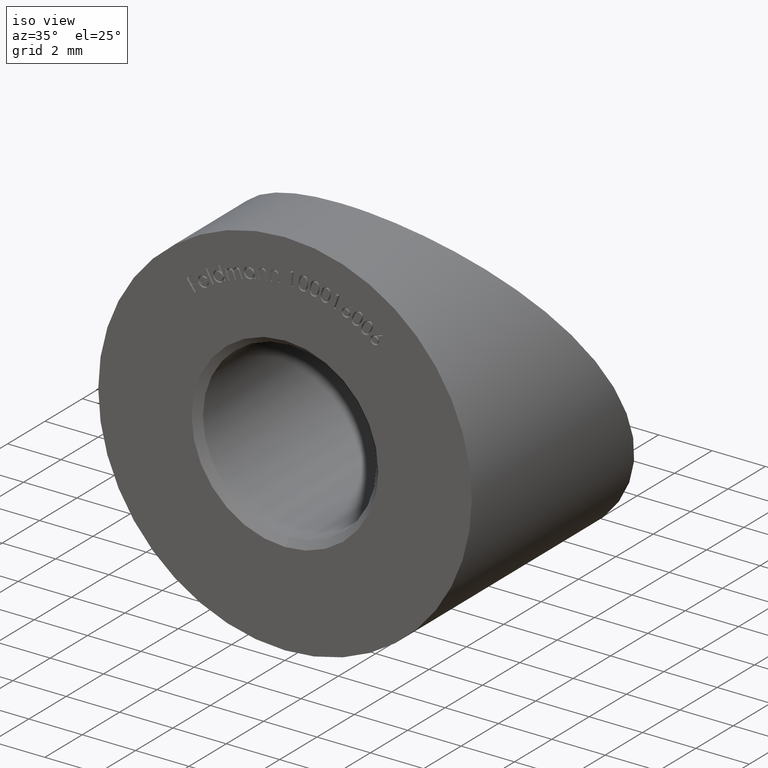
[diagram: clean part render]
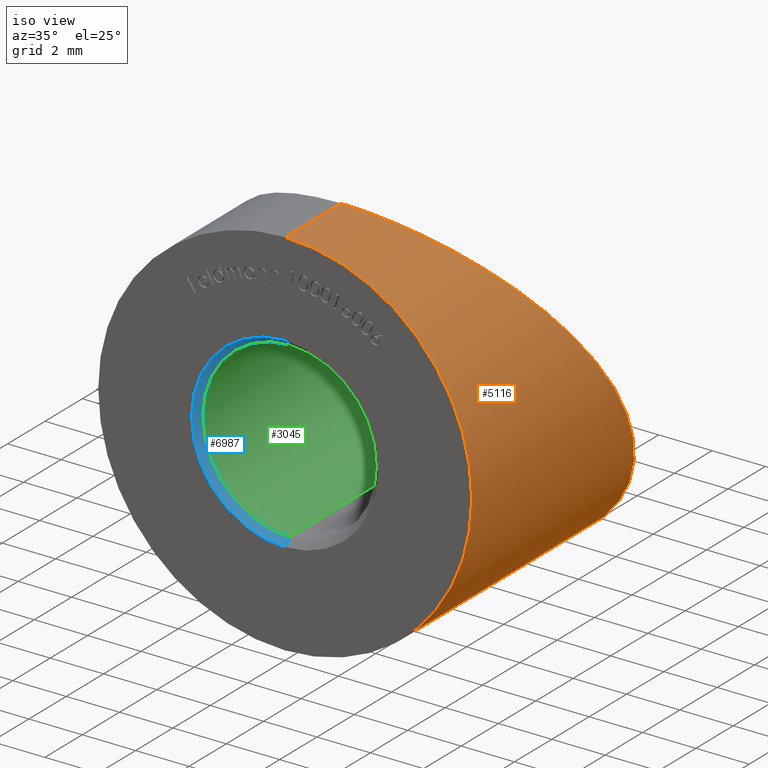
[diagram: same view with three faces highlighted in distinct colors, each labeled with its STEP entity id]
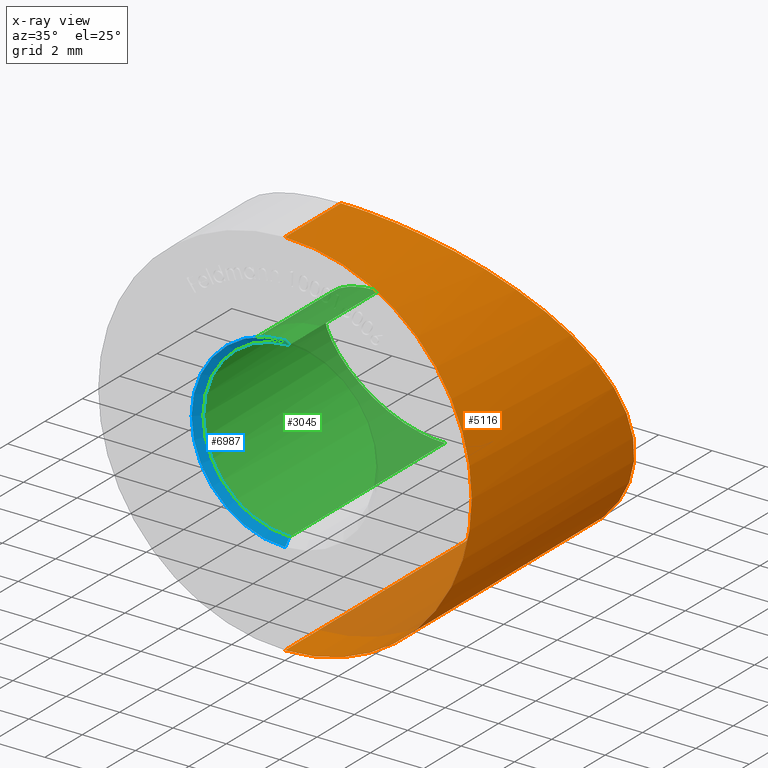
[diagram: x-ray of the same camera — body ghosted, the three highlighted faces saturated]
A machine part, iso view with three faces highlighted in distinct colors.
The next image is the same camera in x-ray (body ghosted, the three faces saturated) — at least one of them is partly hidden behind the body in this view.
Their STEP definitions:

[orange] entity #5116 — the highlighted cylindrical surface (partial cylindrical patch) has radius 7 mm, axis along (-0, -1, -0).
#2 = EDGE_CURVE ( 'NONE', #9500, #5680, #3328, .T. ) ;
#472 = B_SPLINE_CURVE_WITH_KNOTS ( 'NONE', 3,
 ( #5123, #10411, #6013, #7213, #11307, #9237, #2918, #7031, #11352, #9194, #3929, #6065, #10322, #1927, #5002, #12504, #13441, #2831, #749, #13480, #7122, #10238, #833, #6150, #11433, #4067, #13564, #9319, #8198, #12459, #9277, #3972, #5973, #13523, #7167, #9371, #11487, #3883, #5038, #11393, #12379, #13397, #916, #878, #8244, #5081 ),
 .UNSPECIFIED., .F., .F.,
 ( 4, 2, 2, 2, 2, 2, 2, 2, 2, 2, 2, 2, 2, 2, 2, 2, 2, 2, 2, 2, 2, 2, 4 ),
 ( 0.0000000000000000000, 0.001474315538317101100, 0.002948631076634202200, 0.004422946614951303100, 0.005160104384109852900, 0.005897262153268402600, 0.006634419922426952400, 0.007371577691585501400, 0.008845893229902600900, 0.009583050999061152500, 0.01032020876821970600, 0.01179452430653681000, 0.01326883984485391700, 0.01400599761401247000, 0.01474315538317102400, 0.01621747092148812700, 0.01695462869064667800, 0.01769178645980523300, 0.01916610199812234000, 0.02064041753643944600, 0.02137757530559799800, 0.02211473307475655300, 0.02358904861307365900 ),
 .UNSPECIFIED. ) ;
#749 = CARTESIAN_POINT ( 'NONE',  ( 6.770594678604483700, 9.036062907101127800, -1.791723785767992400 ) ) ;
#833 = CARTESIAN_POINT ( 'NONE',  ( 7.013235880452178600, 8.176464968063660500, -0.03361544823270118400 ) ) ;
#878 = CARTESIAN_POINT ( 'NONE',  ( 0.9794534915576735800, 3.046920426225056200, 6.948377241447683000 ) ) ;
#916 = CARTESIAN_POINT ( 'NONE',  ( 1.697100583355313200, 3.186181835987563500, 6.795562409975588000 ) ) ;
#1209 = DIRECTION ( 'NONE',  ( 0.0000000000000000000, 1.000000000000000000, 0.0000000000000000000 ) ) ;
#1500 = CARTESIAN_POINT ( 'NONE',  ( 0.0000000000000000000, 0.0000000000000000000, -7.000000000000000000 ) ) ;
#1927 = CARTESIAN_POINT ( 'NONE',  ( 5.811608423324605300, 9.846113192962537400, -3.909324757547954400 ) ) ;
#2017 = DIRECTION ( 'NONE',  ( -0.0000000000000000000, -1.000000000000000000, -0.0000000000000000000 ) ) ;
#2197 = DIRECTION ( 'NONE',  ( 0.0000000000000000000, 0.0000000000000000000, 1.000000000000000000 ) ) ;
#2601 = FACE_OUTER_BOUND ( 'NONE', #12635, .T. ) ;
#2831 = CARTESIAN_POINT ( 'NONE',  ( 6.708054917636709500, 9.132632332158838300, -2.013688080258984000 ) ) ;
#2918 = CARTESIAN_POINT ( 'NONE',  ( 3.744271798746342700, 10.39711558962667200, -5.934816483502738800 ) ) ;
#2977 = ORIENTED_EDGE ( 'NONE', *, *, #2, .F. ) ;
#3328 = LINE ( 'NONE', #8105, #8650 ) ;
#3334 = CARTESIAN_POINT ( 'NONE',  ( 0.0000000000000000000, 0.0000000000000000000, 0.0000000000000000000 ) ) ;
#3624 = CARTESIAN_POINT ( 'NONE',  ( 8.572527595924596400E-016, 2.999310102530931200, 7.000000000000000000 ) ) ;
#3883 = CARTESIAN_POINT ( 'NONE',  ( 3.641900299066556100, 3.900251462224082500, 5.994325983543516800 ) ) ;
#3927 = EDGE_CURVE ( 'NONE', #3961, #8093, #4431, .T. ) ;
#3929 = CARTESIAN_POINT ( 'NONE',  ( 5.059322672565411200, 10.12615027093803900, -4.843660395887956000 ) ) ;
#3961 = VERTEX_POINT ( 'NONE', #3624 ) ;
#3972 = CARTESIAN_POINT ( 'NONE',  ( 5.680076777937173900, 5.457446693119622200, 4.096321406783468800 ) ) ;
#4003 = EDGE_CURVE ( 'NONE', #9500, #3961, #472, .T. ) ;
#4067 = CARTESIAN_POINT ( 'NONE',  ( 6.752291559585696500, 7.047678365223997200, 1.857524813851149100 ) ) ;
#4110 = CARTESIAN_POINT ( 'NONE',  ( 0.0000000000000000000, 10.60068989746907400, -7.000000000000000000 ) ) ;
#4431 = LINE ( 'NONE', #6618, #10891 ) ;
#4585 = CARTESIAN_POINT ( 'NONE',  ( 8.572527594031473200E-016, 0.0000000000000000000, 7.000000000000000000 ) ) ;
#4970 = ORIENTED_EDGE ( 'NONE', *, *, #4003, .T. ) ;
#5002 = CARTESIAN_POINT ( 'NONE',  ( 5.942639922790501600, 9.779389482918681200, -3.706891497662024200 ) ) ;
#5038 = CARTESIAN_POINT ( 'NONE',  ( 3.240819950511467900, 3.700278639392859500, 6.221970975363006100 ) ) ;
#5081 = CARTESIAN_POINT ( 'NONE',  ( 8.572527595924596400E-016, 2.999310102530931200, 7.000000000000000000 ) ) ;
#5082 = CARTESIAN_POINT ( 'NONE',  ( 0.0000000000000000000, 15.00000000000000000, 0.0000000000000000000 ) ) ;
#5116 = ADVANCED_FACE ( 'NONE', ( #2601 ), #12372, .T. ) ;
#5123 = CARTESIAN_POINT ( 'NONE',  ( 0.0000000000000000000, 10.60068989746907400, -7.000000000000000000 ) ) ;
#5680 = VERTEX_POINT ( 'NONE', #1500 ) ;
#5973 = CARTESIAN_POINT ( 'NONE',  ( 5.555484026391921400, 5.327367022880828500, 4.263918444414103200 ) ) ;
#6013 = CARTESIAN_POINT ( 'NONE',  ( 0.9878984886414214900, 10.59207546340010900, -6.947356308751158100 ) ) ;
#6065 = CARTESIAN_POINT ( 'NONE',  ( 5.379700233170018100, 10.02410318004033800, -4.485155218836728100 ) ) ;
#6150 = CARTESIAN_POINT ( 'NONE',  ( 6.964154476261475300, 7.688628393688798500, 0.8289511107351261700 ) ) ;
#6618 = CARTESIAN_POINT ( 'NONE',  ( 8.572527594031473200E-016, 15.00000000000000000, 7.000000000000000000 ) ) ;
#6629 = AXIS2_PLACEMENT_3D ( 'NONE', #3334, #1209, #2197 ) ;
#7031 = CARTESIAN_POINT ( 'NONE',  ( 4.338768487154998100, 10.29503089189734800, -5.498680979453775200 ) ) ;
#7063 = DIRECTION ( 'NONE',  ( -0.0000000000000000000, -1.000000000000000000, -0.0000000000000000000 ) ) ;
#7122 = CARTESIAN_POINT ( 'NONE',  ( 6.911638796294967700, 8.731868048729293000, -1.130587376461380500 ) ) ;
#7167 = CARTESIAN_POINT ( 'NONE',  ( 5.146303505610000600, 4.941918162679060700, 4.749889233369812800 ) ) ;
#7213 = CARTESIAN_POINT ( 'NONE',  ( 1.949281730393933600, 10.55603420736774600, -6.741068449449014300 ) ) ;
#8093 = VERTEX_POINT ( 'NONE', #4585 ) ;
#8105 = CARTESIAN_POINT ( 'NONE',  ( 0.0000000000000000000, 15.00000000000000000, -7.000000000000000000 ) ) ;
#8198 = CARTESIAN_POINT ( 'NONE',  ( 6.482603309485393000, 6.516780166157502700, 2.649348458176600500 ) ) ;
#8244 = CARTESIAN_POINT ( 'NONE',  ( 0.4935877489881745400, 2.999310102530933400, 7.000000000000001800 ) ) ;
#8650 = VECTOR ( 'NONE', #7063, 1000.000000000000000 ) ;
#8806 = EDGE_CURVE ( 'NONE', #8093, #5680, #11332, .T. ) ;
#8827 = DIRECTION ( 'NONE',  ( -0.0000000000000000000, -1.000000000000000000, -0.0000000000000000000 ) ) ;
#9097 = ORIENTED_EDGE ( 'NONE', *, *, #3927, .T. ) ;
#9194 = CARTESIAN_POINT ( 'NONE',  ( 4.889422322986293400, 10.17246132928159400, -5.015240228211454500 ) ) ;
#9237 = CARTESIAN_POINT ( 'NONE',  ( 3.321925011872370900, 10.44850770307659400, -6.181105687898035100 ) ) ;
#9245 = ORIENTED_EDGE ( 'NONE', *, *, #8806, .T. ) ;
#9277 = CARTESIAN_POINT ( 'NONE',  ( 6.029328546474610000, 5.850501963597210400, 3.580458401154923600 ) ) ;
#9319 = CARTESIAN_POINT ( 'NONE',  ( 6.559113213218739500, 6.651109167932048600, 2.453922648573575700 ) ) ;
#9371 = CARTESIAN_POINT ( 'NONE',  ( 4.696199112599249900, 4.568668223860346000, 5.208575995352950900 ) ) ;
#9500 = VERTEX_POINT ( 'NONE', #4110 ) ;
#10238 = CARTESIAN_POINT ( 'NONE',  ( 6.998060108509077900, 8.408519869428840100, -0.4723022154808646500 ) ) ;
#10322 = CARTESIAN_POINT ( 'NONE',  ( 5.530176011040410300, 9.968368302969311800, -4.298228217876298300 ) ) ;
#10411 = CARTESIAN_POINT ( 'NONE',  ( 0.4984802011976530700, 10.60068989746907400, -7.000000000000000000 ) ) ;
#10891 = VECTOR ( 'NONE', #8827, 1000.000000000000000 ) ;
#11307 = CARTESIAN_POINT ( 'NONE',  ( 2.426193286419977600, 10.52803424600410200, -6.584439189968974500 ) ) ;
#11332 = CIRCLE ( 'NONE', #6629, 7.000000000000000000 ) ;
#11352 = CARTESIAN_POINT ( 'NONE',  ( 4.529756806721169800, 10.25680390016441900, -5.342320513704732900 ) ) ;
#11393 = CARTESIAN_POINT ( 'NONE',  ( 2.602799287885538200, 3.450815443957643100, 6.502260765261245200 ) ) ;
#11433 = CARTESIAN_POINT ( 'NONE',  ( 6.900718366892465200, 7.436283536692041500, 1.247174799189336900 ) ) ;
#11487 = CARTESIAN_POINT ( 'NONE',  ( 4.366997946417799700, 4.333545501756357300, 5.488598247395118300 ) ) ;
#12372 = CYLINDRICAL_SURFACE ( 'NONE', #12857, 7.000000000000000000 ) ;
#12379 = CARTESIAN_POINT ( 'NONE',  ( 2.383703828126547900, 3.375712945707666000, 6.585927241897988600 ) ) ;
#12459 = CARTESIAN_POINT ( 'NONE',  ( 6.229706812565763300, 6.116254021652715700, 3.219242878915241000 ) ) ;
#12504 = CARTESIAN_POINT ( 'NONE',  ( 6.297847899912675900, 9.566182660432645000, -3.092113700867962700 ) ) ;
#12635 = EDGE_LOOP ( 'NONE', ( #4970, #9097, #9245, #2977 ) ) ;
#12857 = AXIS2_PLACEMENT_3D ( 'NONE', #5082, #2017, #13566 ) ;
#13397 = CARTESIAN_POINT ( 'NONE',  ( 1.931529216488785400, 3.243526982414535600, 6.732434660778329400 ) ) ;
#13441 = CARTESIAN_POINT ( 'NONE',  ( 6.487982177795021100, 9.405341011367841700, -2.667929742523743800 ) ) ;
#13480 = CARTESIAN_POINT ( 'NONE',  ( 6.872196403760848500, 8.835845930552068200, -1.350608386828179300 ) ) ;
#13523 = CARTESIAN_POINT ( 'NONE',  ( 5.288943657226933900, 5.069878441659079200, 4.590367987295739900 ) ) ;
#13564 = CARTESIAN_POINT ( 'NONE',  ( 6.693863354514080700, 6.916462306032266300, 2.058129223371684800 ) ) ;
#13566 = DIRECTION ( 'NONE',  ( 0.0000000000000000000, 0.0000000000000000000, -1.000000000000000000 ) ) ;

[blue] entity #6987 — the highlighted conical surface has half-angle 45 deg.
#12 = VECTOR ( 'NONE', #5268, 1000.000000000000000 ) ;
#486 = VERTEX_POINT ( 'NONE', #12079 ) ;
#856 = ORIENTED_EDGE ( 'NONE', *, *, #3737, .F. ) ;
#1970 = CARTESIAN_POINT ( 'NONE',  ( 3.980102097228898200E-016, 0.2500000000000002200, 3.250000000000000400 ) ) ;
#2435 = EDGE_CURVE ( 'NONE', #3643, #486, #5924, .T. ) ;
#2862 = EDGE_CURVE ( 'NONE', #13269, #8377, #6248, .T. ) ;
#2961 = EDGE_LOOP ( 'NONE', ( #3092, #7623, #4873, #856 ) ) ;
#3092 = ORIENTED_EDGE ( 'NONE', *, *, #2435, .F. ) ;
#3216 = FACE_OUTER_BOUND ( 'NONE', #2961, .T. ) ;
#3643 = VERTEX_POINT ( 'NONE', #9558 ) ;
#3737 = EDGE_CURVE ( 'NONE', #486, #13269, #10724, .T. ) ;
#4006 = EDGE_CURVE ( 'NONE', #3643, #8377, #7230, .T. ) ;
#4873 = ORIENTED_EDGE ( 'NONE', *, *, #2862, .F. ) ;
#4954 = CARTESIAN_POINT ( 'NONE',  ( 0.0000000000000000000, 0.0000000000000000000, 0.0000000000000000000 ) ) ;
#5268 = DIRECTION ( 'NONE',  ( 8.659560562354919300E-017, -0.7071067811865487900, 0.7071067811865463500 ) ) ;
#5508 = CARTESIAN_POINT ( 'NONE',  ( 0.0000000000000000000, 0.2500000000000002200, 0.0000000000000000000 ) ) ;
#5512 = CARTESIAN_POINT ( 'NONE',  ( 0.0000000000000000000, 0.0000000000000000000, -3.499999999999999600 ) ) ;
#5806 = CARTESIAN_POINT ( 'NONE',  ( 4.286263797015736100E-016, 0.0000000000000000000, 3.499999999999999600 ) ) ;
#5924 = CIRCLE ( 'NONE', #8042, 3.250000000000000400 ) ;
#6109 = DIRECTION ( 'NONE',  ( 0.0000000000000000000, -1.000000000000000000, 0.0000000000000000000 ) ) ;
#6248 = CIRCLE ( 'NONE', #12308, 3.499999999999999600 ) ;
#6580 = CARTESIAN_POINT ( 'NONE',  ( 0.0000000000000000000, 0.2500000000000002200, -3.250000000000000400 ) ) ;
#6987 = ADVANCED_FACE ( 'NONE', ( #3216 ), #8043, .F. ) ;
#7029 = DIRECTION ( 'NONE',  ( 0.0000000000000000000, 1.000000000000000000, 0.0000000000000000000 ) ) ;
#7230 = LINE ( 'NONE', #1970, #12 ) ;
#7496 = DIRECTION ( 'NONE',  ( 0.0000000000000000000, 0.0000000000000000000, -1.000000000000000000 ) ) ;
#7623 = ORIENTED_EDGE ( 'NONE', *, *, #4006, .T. ) ;
#8042 = AXIS2_PLACEMENT_3D ( 'NONE', #10372, #6109, #12424 ) ;
#8043 = CONICAL_SURFACE ( 'NONE', #11165, 3.250000000000000400, 0.7853981633974466100 ) ;
#8195 = DIRECTION ( 'NONE',  ( 0.0000000000000000000, 0.0000000000000000000, 1.000000000000000000 ) ) ;
#8377 = VERTEX_POINT ( 'NONE', #5806 ) ;
#8587 = VECTOR ( 'NONE', #9705, 1000.000000000000000 ) ;
#8627 = DIRECTION ( 'NONE',  ( 0.0000000000000000000, -1.000000000000000000, 0.0000000000000000000 ) ) ;
#9558 = CARTESIAN_POINT ( 'NONE',  ( 3.980102097228898200E-016, 0.2500000000000002200, 3.250000000000000400 ) ) ;
#9705 = DIRECTION ( 'NONE',  ( 0.0000000000000000000, -0.7071067811865487900, -0.7071067811865463500 ) ) ;
#10372 = CARTESIAN_POINT ( 'NONE',  ( 0.0000000000000000000, 0.2500000000000002200, 0.0000000000000000000 ) ) ;
#10724 = LINE ( 'NONE', #6580, #8587 ) ;
#11165 = AXIS2_PLACEMENT_3D ( 'NONE', #5508, #8627, #7496 ) ;
#12079 = CARTESIAN_POINT ( 'NONE',  ( 0.0000000000000000000, 0.2500000000000002200, -3.250000000000000400 ) ) ;
#12308 = AXIS2_PLACEMENT_3D ( 'NONE', #4954, #7029, #8195 ) ;
#12424 = DIRECTION ( 'NONE',  ( 0.0000000000000000000, 0.0000000000000000000, 1.000000000000000000 ) ) ;
#13269 = VERTEX_POINT ( 'NONE', #5512 ) ;

[green] entity #3045 — the highlighted cylindrical surface (partial cylindrical patch) has radius 3.25 mm, axis along (-0, -1, -0).
#486 = VERTEX_POINT ( 'NONE', #12079 ) ;
#521 = CARTESIAN_POINT ( 'NONE',  ( 3.979939262421096800E-016, 5.035393976175074100, 3.250000000000000400 ) ) ;
#558 = DIRECTION ( 'NONE',  ( -0.0000000000000000000, -1.000000000000000000, -0.0000000000000000000 ) ) ;
#798 = ORIENTED_EDGE ( 'NONE', *, *, #2435, .T. ) ;
#993 = CARTESIAN_POINT ( 'NONE',  ( -1.109604549217515100, 5.169073901962677900, 3.062666917213188200 ) ) ;
#1533 = CARTESIAN_POINT ( 'NONE',  ( 0.0000000000000000000, 11.21802027601583900, 0.0000000000000000000 ) ) ;
#1798 = CARTESIAN_POINT ( 'NONE',  ( 3.979939262421096800E-016, 5.035393976175074100, 3.250000000000000400 ) ) ;
#1868 = CARTESIAN_POINT ( 'NONE',  ( -2.672941581978505200, 8.002600963212549000, -1.860971190111637900 ) ) ;
#2087 = CARTESIAN_POINT ( 'NONE',  ( -1.531310926394326300, 8.423085640482273800, -2.875378245535597200 ) ) ;
#2435 = EDGE_CURVE ( 'NONE', #3643, #486, #5924, .T. ) ;
#2508 = B_SPLINE_CURVE_WITH_KNOTS ( 'NONE', 3,
 ( #1798, #2813, #3914, #10353, #993, #6048, #3999, #13466, #11513, #3032, #8317, #9437, #12572, #12485, #7198, #7103, #5024, #8180, #7151, #10439, #11418, #1868, #10396, #4051, #11467, #4098, #2087, #10532, #9577, #9628, #12665, #4186 ),
 .UNSPECIFIED., .F., .F.,
 ( 4, 2, 2, 2, 2, 2, 2, 2, 2, 2, 2, 2, 2, 2, 2, 4 ),
 ( 0.01089618234621181500, 0.01157602525248070000, 0.01225586815874958600, 0.01293571106501847100, 0.01361555397128735500, 0.01429539687755624100, 0.01497523978382512400, 0.01633492559636289700, 0.01701476850263178000, 0.01769461140890066200, 0.01837445431516954500, 0.01905429722143843100, 0.01973414012770731400, 0.02041398303397620000, 0.02109382594024508000, 0.02177366884651396600 ),
 .UNSPECIFIED. ) ;
#2694 = LINE ( 'NONE', #5476, #13138 ) ;
#2813 = CARTESIAN_POINT ( 'NONE',  ( -0.2267735953447817000, 5.035393976175073200, 3.250000000000000900 ) ) ;
#3032 = CARTESIAN_POINT ( 'NONE',  ( -2.491605459514739400, 5.828161368441853600, 2.096808612245306200 ) ) ;
#3045 = ADVANCED_FACE ( 'NONE', ( #7243 ), #4099, .F. ) ;
#3401 = DIRECTION ( 'NONE',  ( -0.0000000000000000000, -1.000000000000000000, -0.0000000000000000000 ) ) ;
#3643 = VERTEX_POINT ( 'NONE', #9558 ) ;
#3914 = CARTESIAN_POINT ( 'NONE',  ( -0.4551786877471316600, 5.052702973973863400, 3.225932735812153700 ) ) ;
#3999 = CARTESIAN_POINT ( 'NONE',  ( -1.701802829723031700, 5.369295867338260000, 2.776913436658580400 ) ) ;
#4001 = ORIENTED_EDGE ( 'NONE', *, *, #12271, .T. ) ;
#4051 = CARTESIAN_POINT ( 'NONE',  ( -2.250719509181120500, 8.214115703888134900, -2.354451566661326400 ) ) ;
#4098 = CARTESIAN_POINT ( 'NONE',  ( -1.726057189348559000, 8.379288636174223400, -2.762821752976151000 ) ) ;
#4099 = CYLINDRICAL_SURFACE ( 'NONE', #12129, 3.250000000000000400 ) ;
#4145 = CARTESIAN_POINT ( 'NONE',  ( 0.0000000000000000000, 11.21802027601583900, -3.250000000000000400 ) ) ;
#4186 = CARTESIAN_POINT ( 'NONE',  ( 0.0000000000000000000, 8.564606023824930900, -3.250000000000000400 ) ) ;
#4213 = LINE ( 'NONE', #4145, #11860 ) ;
#4645 = EDGE_LOOP ( 'NONE', ( #10929, #4001, #798, #6516 ) ) ;
#5024 = CARTESIAN_POINT ( 'NONE',  ( -3.240797429513224200, 7.256295680362845800, -0.3182489818234684500 ) ) ;
#5476 = CARTESIAN_POINT ( 'NONE',  ( 3.980102097228898200E-016, 11.21802027601583900, 3.250000000000000400 ) ) ;
#5924 = CIRCLE ( 'NONE', #8042, 3.250000000000000400 ) ;
#6048 = CARTESIAN_POINT ( 'NONE',  ( -1.513235060643662200, 5.294188923501820000, 2.884661254406677900 ) ) ;
#6109 = DIRECTION ( 'NONE',  ( 0.0000000000000000000, -1.000000000000000000, 0.0000000000000000000 ) ) ;
#6406 = EDGE_CURVE ( 'NONE', #12750, #486, #4213, .T. ) ;
#6516 = ORIENTED_EDGE ( 'NONE', *, *, #6406, .F. ) ;
#7103 = CARTESIAN_POINT ( 'NONE',  ( -3.253908731613381500, 7.150126907915393700, -0.1183980777338185800 ) ) ;
#7151 = CARTESIAN_POINT ( 'NONE',  ( -3.123539752796126800, 7.563249789943003300, -0.9210975898789601800 ) ) ;
#7198 = CARTESIAN_POINT ( 'NONE',  ( -3.239218117723875200, 6.824147230644648200, 0.4772070197858436800 ) ) ;
#7243 = FACE_OUTER_BOUND ( 'NONE', #4645, .T. ) ;
#8042 = AXIS2_PLACEMENT_3D ( 'NONE', #10372, #6109, #12424 ) ;
#8180 = CARTESIAN_POINT ( 'NONE',  ( -3.175635705791485900, 7.463449650144234200, -0.7206859632831855700 ) ) ;
#8317 = CARTESIAN_POINT ( 'NONE',  ( -2.616923170015498500, 5.932042269575936700, 1.937763797466362400 ) ) ;
#8973 = VERTEX_POINT ( 'NONE', #521 ) ;
#9294 = CARTESIAN_POINT ( 'NONE',  ( 0.0000000000000000000, 8.564606023824930900, -3.250000000000000400 ) ) ;
#9424 = EDGE_CURVE ( 'NONE', #8973, #12750, #2508, .T. ) ;
#9437 = CARTESIAN_POINT ( 'NONE',  ( -2.836519035984395000, 6.148286568643965400, 1.599179530582285300 ) ) ;
#9489 = DIRECTION ( 'NONE',  ( -0.0000000000000000000, -1.000000000000000000, -0.0000000000000000000 ) ) ;
#9558 = CARTESIAN_POINT ( 'NONE',  ( 3.980102097228898200E-016, 0.2500000000000002200, 3.250000000000000400 ) ) ;
#9577 = CARTESIAN_POINT ( 'NONE',  ( -0.9040132759079383400, 8.520096762168071400, -3.130080349590821200 ) ) ;
#9628 = CARTESIAN_POINT ( 'NONE',  ( -0.4574468057230723400, 8.555709704441277100, -3.225737964845588400 ) ) ;
#10353 = CARTESIAN_POINT ( 'NONE',  ( -0.8983664528508942300, 5.120041684483238600, 3.131575860514286300 ) ) ;
#10372 = CARTESIAN_POINT ( 'NONE',  ( 0.0000000000000000000, 0.2500000000000002200, 0.0000000000000000000 ) ) ;
#10396 = CARTESIAN_POINT ( 'NONE',  ( -2.542578814333325000, 8.078887432749484200, -2.035797991369926700 ) ) ;
#10439 = CARTESIAN_POINT ( 'NONE',  ( -2.982270769135502600, 7.749952759310669800, -1.308045265630531000 ) ) ;
#10532 = CARTESIAN_POINT ( 'NONE',  ( -1.122189649179461400, 8.493230544811902800, -3.058333467669685800 ) ) ;
#10929 = ORIENTED_EDGE ( 'NONE', *, *, #9424, .F. ) ;
#11418 = CARTESIAN_POINT ( 'NONE',  ( -2.892881837654596800, 7.837767507438111500, -1.496350608802445000 ) ) ;
#11467 = CARTESIAN_POINT ( 'NONE',  ( -2.088031759702284200, 8.274070508560186000, -2.500516112744455300 ) ) ;
#11513 = CARTESIAN_POINT ( 'NONE',  ( -2.207744867941333400, 5.630853946294339000, 2.393860213201356700 ) ) ;
#11860 = VECTOR ( 'NONE', #9489, 1000.000000000000000 ) ;
#12047 = DIRECTION ( 'NONE',  ( 0.0000000000000000000, 0.0000000000000000000, -1.000000000000000000 ) ) ;
#12079 = CARTESIAN_POINT ( 'NONE',  ( 0.0000000000000000000, 0.2500000000000002200, -3.250000000000000400 ) ) ;
#12129 = AXIS2_PLACEMENT_3D ( 'NONE', #1533, #558, #12047 ) ;
#12271 = EDGE_CURVE ( 'NONE', #8973, #3643, #2694, .T. ) ;
#12424 = DIRECTION ( 'NONE',  ( 0.0000000000000000000, 0.0000000000000000000, 1.000000000000000000 ) ) ;
#12485 = CARTESIAN_POINT ( 'NONE',  ( -3.155493808104845600, 6.594200533097700900, 0.8727930396966485600 ) ) ;
#12572 = CARTESIAN_POINT ( 'NONE',  ( -2.929439168816400300, 6.259575819054577800, 1.421262949628608200 ) ) ;
#12665 = CARTESIAN_POINT ( 'NONE',  ( -0.2299397436837390100, 8.564606023824932600, -3.250000000000000900 ) ) ;
#12750 = VERTEX_POINT ( 'NONE', #9294 ) ;
#13138 = VECTOR ( 'NONE', #3401, 1000.000000000000000 ) ;
#13466 = CARTESIAN_POINT ( 'NONE',  ( -2.047896810653554700, 5.536972399453263800, 2.532488846740154700 ) ) ;